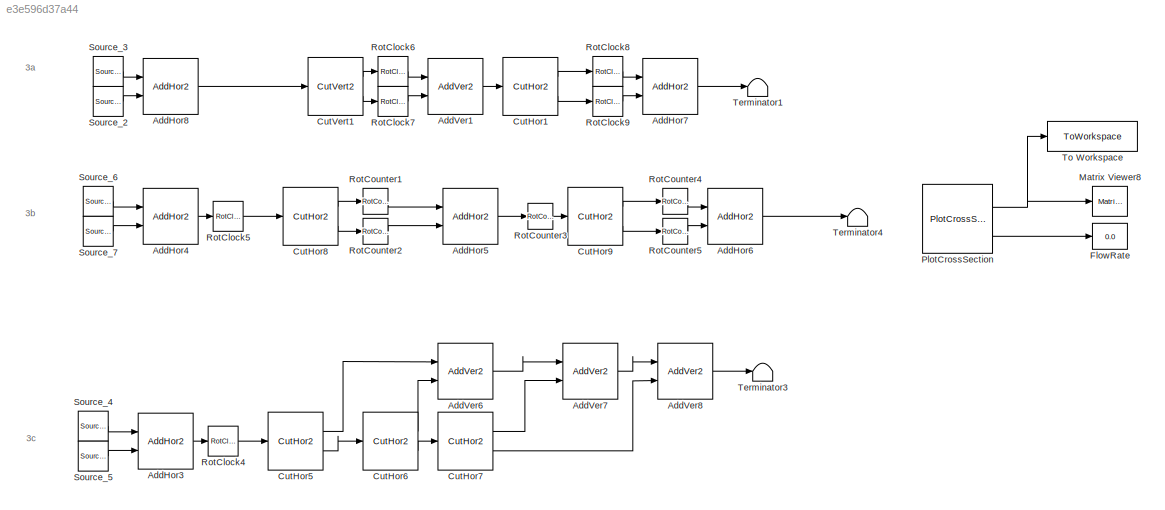
MODEL slx_e3e596d37a44
KIND model
CONFIG AbsTol = auto
CONFIG EnableMultiTasking = off
CONFIG FixedStep = auto
CONFIG MaxStep = auto
CONFIG MinStep = auto
CONFIG RelTol = 1e-3
CONFIG SampleTimeConstraint = Unconstrained
CONFIG SolverName = VariableStepAuto
CONFIG StartTime = 0.0
CONFIG StopTime = 10.0
BLOCK [Reference] AddHor3  REF=myLib_CustomBoolean/AddHor2
  Ports = [2, 1]
  SourceBlock = myLib_CustomBoolean/AddHor2
  SourceProductName = Boolean_Custom_Library
BLOCK [Reference] AddHor4  REF=myLib_CustomBoolean/AddHor2
  Ports = [2, 1]
  SourceBlock = myLib_CustomBoolean/AddHor2
  SourceProductName = Boolean_Custom_Library
BLOCK [Reference] AddHor5  REF=myLib_CustomBoolean/AddHor2
  Ports = [2, 1]
  SourceBlock = myLib_CustomBoolean/AddHor2
  SourceProductName = Boolean_Custom_Library
BLOCK [Reference] AddHor6  REF=myLib_CustomBoolean/AddHor2
  Ports = [2, 1]
  SourceBlock = myLib_CustomBoolean/AddHor2
  SourceProductName = Boolean_Custom_Library
BLOCK [Reference] AddHor7  REF=myLib_CustomBoolean/AddHor2
  Ports = [2, 1]
  SourceBlock = myLib_CustomBoolean/AddHor2
  SourceProductName = Boolean_Custom_Library
BLOCK [Reference] AddHor8  REF=myLib_CustomBoolean/AddHor2
  Ports = [2, 1]
  SourceBlock = myLib_CustomBoolean/AddHor2
  SourceProductName = Boolean_Custom_Library
BLOCK [Reference] AddVer1  REF=myLib_CustomBoolean/AddVer2
  Ports = [2, 1]
  SourceBlock = myLib_CustomBoolean/AddVer2
  SourceProductName = Boolean_Custom_Library
BLOCK [Reference] AddVer6  REF=myLib_CustomBoolean/AddVer2
  Ports = [2, 1]
  SourceBlock = myLib_CustomBoolean/AddVer2
  SourceProductName = Boolean_Custom_Library
BLOCK [Reference] AddVer7  REF=myLib_CustomBoolean/AddVer2
  Ports = [2, 1]
  SourceBlock = myLib_CustomBoolean/AddVer2
  SourceProductName = Boolean_Custom_Library
BLOCK [Reference] AddVer8  REF=myLib_CustomBoolean/AddVer2
  Ports = [2, 1]
  SourceBlock = myLib_CustomBoolean/AddVer2
  SourceProductName = Boolean_Custom_Library
BLOCK [Reference] CutHor1  REF=myLib_CustomBoolean/CutHor2
  Ports = [1, 2]
  SourceBlock = myLib_CustomBoolean/CutHor2
  SourceProductName = Boolean_Custom_Library
BLOCK [Reference] CutHor5  REF=myLib_CustomBoolean/CutHor2
  Ports = [1, 2]
  SourceBlock = myLib_CustomBoolean/CutHor2
  SourceProductName = Boolean_Custom_Library
BLOCK [Reference] CutHor6  REF=myLib_CustomBoolean/CutHor2
  Ports = [1, 2]
  SourceBlock = myLib_CustomBoolean/CutHor2
  SourceProductName = Boolean_Custom_Library
BLOCK [Reference] CutHor7  REF=myLib_CustomBoolean/CutHor2
  Ports = [1, 2]
  SourceBlock = myLib_CustomBoolean/CutHor2
  SourceProductName = Boolean_Custom_Library
BLOCK [Reference] CutHor8  REF=myLib_CustomBoolean/CutHor2
  Ports = [1, 2]
  SourceBlock = myLib_CustomBoolean/CutHor2
  SourceProductName = Boolean_Custom_Library
BLOCK [Reference] CutHor9  REF=myLib_CustomBoolean/CutHor2
  Ports = [1, 2]
  SourceBlock = myLib_CustomBoolean/CutHor2
  SourceProductName = Boolean_Custom_Library
BLOCK [Reference] CutVert1  REF=myLib_CustomBoolean/CutVert2
  Ports = [1, 2]
  SourceBlock = myLib_CustomBoolean/CutVert2
  SourceProductName = Boolean_Custom_Library
BLOCK [Display] FlowRate
  Decimation = 1
  Ports = [1]
BLOCK [Reference] Matrix Viewer8  REF=dspobslib/Matrix
Viewer
  Ports = [1]
  SourceBlock = dspobslib/Matrix\nViewer
  SourceProductBaseCode = DS
  SourceType = Matrix Viewer
BLOCK [Reference] PlotCrossSection  REF=myLib_CustomBoolean/PlotCrossSection
  Ports = [1, 2]
  SourceBlock = myLib_CustomBoolean/PlotCrossSection
  SourceProductName = Boolean_Custom_Library
  SourceType = SubSystem
BLOCK [Reference] RotClock4  REF=myLib_CustomBoolean/RotClock
  Ports = [1, 1]
  SourceBlock = myLib_CustomBoolean/RotClock
  SourceProductName = Boolean_Custom_Library
BLOCK [Reference] RotClock5  REF=myLib_CustomBoolean/RotClock
  Ports = [1, 1]
  SourceBlock = myLib_CustomBoolean/RotClock
  SourceProductName = Boolean_Custom_Library
BLOCK [Reference] RotClock6  REF=myLib_CustomBoolean/RotClock
  Ports = [1, 1]
  SourceBlock = myLib_CustomBoolean/RotClock
  SourceProductName = Boolean_Custom_Library
BLOCK [Reference] RotClock7  REF=myLib_CustomBoolean/RotClock
  Ports = [1, 1]
  SourceBlock = myLib_CustomBoolean/RotClock
  SourceProductName = Boolean_Custom_Library
BLOCK [Reference] RotClock8  REF=myLib_CustomBoolean/RotClock
  Ports = [1, 1]
  SourceBlock = myLib_CustomBoolean/RotClock
  SourceProductName = Boolean_Custom_Library
BLOCK [Reference] RotClock9  REF=myLib_CustomBoolean/RotClock
  Ports = [1, 1]
  SourceBlock = myLib_CustomBoolean/RotClock
  SourceProductName = Boolean_Custom_Library
BLOCK [Reference] RotCounter1  REF=myLib_CustomBoolean/RotCounter
  Ports = [1, 1]
  SourceBlock = myLib_CustomBoolean/RotCounter
  SourceProductName = Boolean_Custom_Library
BLOCK [Reference] RotCounter2  REF=myLib_CustomBoolean/RotCounter
  Ports = [1, 1]
  SourceBlock = myLib_CustomBoolean/RotCounter
  SourceProductName = Boolean_Custom_Library
BLOCK [Reference] RotCounter3  REF=myLib_CustomBoolean/RotCounter
  Ports = [1, 1]
  SourceBlock = myLib_CustomBoolean/RotCounter
  SourceProductName = Boolean_Custom_Library
BLOCK [Reference] RotCounter4  REF=myLib_CustomBoolean/RotCounter
  Ports = [1, 1]
  SourceBlock = myLib_CustomBoolean/RotCounter
  SourceProductName = Boolean_Custom_Library
BLOCK [Reference] RotCounter5  REF=myLib_CustomBoolean/RotCounter
  Ports = [1, 1]
  SourceBlock = myLib_CustomBoolean/RotCounter
  SourceProductName = Boolean_Custom_Library
BLOCK [Reference] Source_2  REF=myLib_CustomBoolean/Source_0
  Ports = [0, 1]
  SourceBlock = myLib_CustomBoolean/Source_0
  SourceProductName = Boolean_Custom_Library
BLOCK [Reference] Source_3  REF=myLib_CustomBoolean/Source_1
  Ports = [0, 1]
  SourceBlock = myLib_CustomBoolean/Source_1
  SourceProductName = Boolean_Custom_Library
BLOCK [Reference] Source_4  REF=myLib_CustomBoolean/Source_1
  Ports = [0, 1]
  SourceBlock = myLib_CustomBoolean/Source_1
  SourceProductName = Boolean_Custom_Library
BLOCK [Reference] Source_5  REF=myLib_CustomBoolean/Source_0
  Ports = [0, 1]
  SourceBlock = myLib_CustomBoolean/Source_0
  SourceProductName = Boolean_Custom_Library
BLOCK [Reference] Source_6  REF=myLib_CustomBoolean/Source_1
  Ports = [0, 1]
  SourceBlock = myLib_CustomBoolean/Source_1
  SourceProductName = Boolean_Custom_Library
BLOCK [Reference] Source_7  REF=myLib_CustomBoolean/Source_0
  Ports = [0, 1]
  SourceBlock = myLib_CustomBoolean/Source_0
  SourceProductName = Boolean_Custom_Library
BLOCK [Terminator] Terminator1
BLOCK [Terminator] Terminator3
BLOCK [Terminator] Terminator4
BLOCK [ToWorkspace] To Workspace
  FixptAsFi = on
  MaxDataPoints = inf
  Ports = [1]
  SampleTime = 51
  VariableName = extrudateArray
ANNOTATION (root): 3a
ANNOTATION (root): 3b
ANNOTATION (root): 3c
LINE AddHor3:1 -> RotClock4:1
LINE AddHor4:1 -> RotClock5:1
LINE AddHor5:1 -> RotCounter3:1
LINE AddHor6:1 -> Terminator4:1
LINE AddHor7:1 -> Terminator1:1
LINE AddHor8:1 -> CutVert1:1
LINE AddVer1:1 -> CutHor1:1
LINE AddVer6:1 -> AddVer7:1
LINE AddVer7:1 -> AddVer8:1
LINE AddVer8:1 -> Terminator3:1
LINE CutHor1:1 -> RotClock8:1
LINE CutHor1:2 -> RotClock9:1
LINE CutHor5:1 -> AddVer6:1
LINE CutHor5:2 -> CutHor6:1
LINE CutHor6:1 -> AddVer6:2
LINE CutHor6:2 -> CutHor7:1
LINE CutHor7:1 -> AddVer7:2
LINE CutHor7:2 -> AddVer8:2
LINE CutHor8:1 -> RotCounter1:1
LINE CutHor8:2 -> RotCounter2:1
LINE CutHor9:1 -> RotCounter4:1
LINE CutHor9:2 -> RotCounter5:1
LINE CutVert1:1 -> RotClock6:1
LINE CutVert1:2 -> RotClock7:1
NET PlotCrossSection:1 -> Matrix Viewer8:1, To Workspace:1
LINE PlotCrossSection:2 -> FlowRate:1
LINE RotClock4:1 -> CutHor5:1
LINE RotClock5:1 -> CutHor8:1
LINE RotClock6:1 -> AddVer1:1
LINE RotClock7:1 -> AddVer1:2
LINE RotClock8:1 -> AddHor7:1
LINE RotClock9:1 -> AddHor7:2
LINE RotCounter1:1 -> AddHor5:1
LINE RotCounter2:1 -> AddHor5:2
LINE RotCounter3:1 -> CutHor9:1
LINE RotCounter4:1 -> AddHor6:1
LINE RotCounter5:1 -> AddHor6:2
LINE Source_2:1 -> AddHor8:2
LINE Source_3:1 -> AddHor8:1
LINE Source_4:1 -> AddHor3:1
LINE Source_5:1 -> AddHor3:2
LINE Source_6:1 -> AddHor4:1
LINE Source_7:1 -> AddHor4:2
note: NET lines group one-source signal fan-out (src -> all destinations, sorted); 1:1 wires keep LINE
